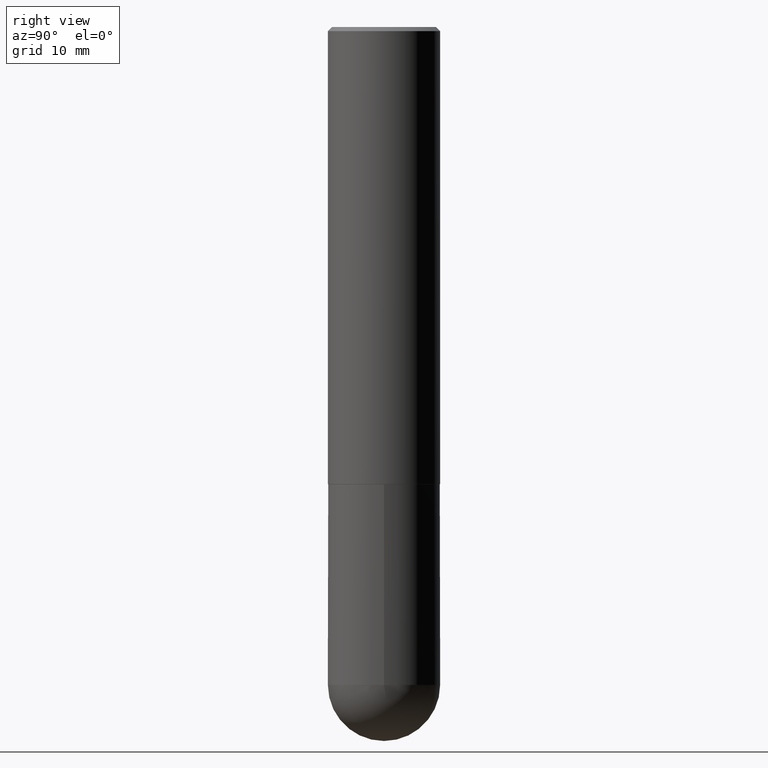
[diagram: clean part render]
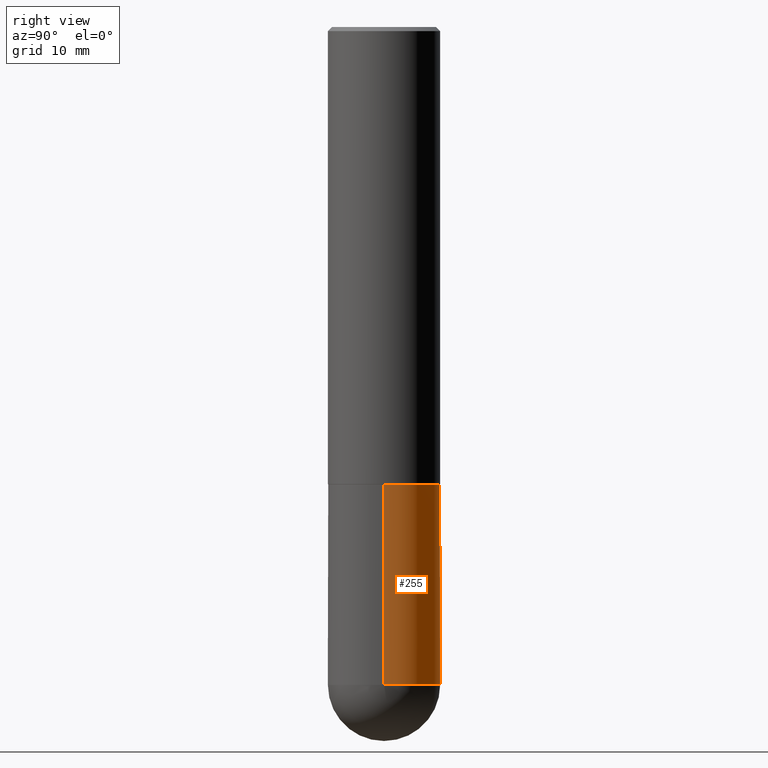
[diagram: same view with one face highlighted and labeled with its STEP entity id]
A machine part, right view. The second image highlights one B-rep face of the part: STEP entity #255.
In plain terms, the highlighted cylindrical surface (partial cylindrical patch) has radius 7.0002 mm, axis along (-0, 0, 1).
Its self-contained STEP definition (entity closure, byte-faithful):
#4 = DIRECTION ( 'NONE',  ( 1.000000000000000000, -6.982962677686264344E-15, 0.000000000000000000 ) ) ;
#8 = DIRECTION ( 'NONE',  ( -2.445468806185136597E-29, 3.491481338843145583E-15, 1.000000000000000000 ) ) ;
#16 = DIRECTION ( 'NONE',  ( -2.445468806185136877E-29, 3.491481338843145188E-15, 1.000000000000000000 ) ) ;
#19 = ORIENTED_EDGE ( 'NONE', *, *, #280, .T. ) ;
#20 = CIRCLE ( 'NONE', #304, 0.2756000000000000671 ) ;
#21 = AXIS2_PLACEMENT_3D ( 'NONE', #398, #245, #340 ) ;
#25 = DIRECTION ( 'NONE',  ( -2.445468806185136597E-29, 3.491481338843145583E-15, 1.000000000000000000 ) ) ;
#37 = CARTESIAN_POINT ( 'NONE',  ( 1.924504513970413840E-15, 0.2755999999999887429, -3.228300000000000836 ) ) ;
#51 = CARTESIAN_POINT ( 'NONE',  ( 0.2756000000000000671, -1.147789575331294974E-14, -3.228299999999999503 ) ) ;
#56 = ORIENTED_EDGE ( 'NONE', *, *, #395, .F. ) ;
#60 = FACE_OUTER_BOUND ( 'NONE', #246, .T. ) ;
#74 = CARTESIAN_POINT ( 'NONE',  ( -0.2756000000000000671, 1.958255779754836589E-15, -1.355658510874252287E-29 ) ) ;
#78 = ORIENTED_EDGE ( 'NONE', *, *, #385, .T. ) ;
#81 = CARTESIAN_POINT ( 'NONE',  ( -0.2756000000000000671, -7.595135459587778194E-15, -3.228299999999999503 ) ) ;
#83 = VERTEX_POINT ( 'NONE', #233 ) ;
#90 = VECTOR ( 'NONE', #127, 39.37007874015748143 ) ;
#101 = CIRCLE ( 'NONE', #331, 0.2756000000000000671 ) ;
#117 = EDGE_CURVE ( 'NONE', #259, #374, #20, .T. ) ;
#127 = DIRECTION ( 'NONE',  ( -2.445468806185136877E-29, 3.491481338843145188E-15, 1.000000000000000000 ) ) ;
#194 = CARTESIAN_POINT ( 'NONE',  ( 0.000000000000000000, 0.000000000000000000, 0.000000000000000000 ) ) ;
#198 = ORIENTED_EDGE ( 'NONE', *, *, #117, .T. ) ;
#207 = AXIS2_PLACEMENT_3D ( 'NONE', #194, #411, #318 ) ;
#223 = CIRCLE ( 'NONE', #21, 0.2756000000000000116 ) ;
#233 = CARTESIAN_POINT ( 'NONE',  ( 0.2756000000000000116, -9.759737786468235716E-15, -2.244099999999999540 ) ) ;
#245 = DIRECTION ( 'NONE',  ( -2.445468806185136597E-29, 3.491481338843145583E-15, 1.000000000000000000 ) ) ;
#246 = EDGE_LOOP ( 'NONE', ( #198, #78, #303, #56, #19 ) ) ;
#247 = LINE ( 'NONE', #74, #363 ) ;
#255 = ADVANCED_FACE ( 'NONE', ( #60 ), #320, .T. ) ;
#259 = VERTEX_POINT ( 'NONE', #37 ) ;
#270 = CARTESIAN_POINT ( 'NONE',  ( 7.894706947007475996E-29, -1.127154920618732565E-14, -3.228299999999999503 ) ) ;
#273 = CARTESIAN_POINT ( 'NONE',  ( -0.2756000000000000116, -7.595135459587776616E-15, -2.244099999999999540 ) ) ;
#280 = EDGE_CURVE ( 'NONE', #346, #259, #101, .T. ) ;
#303 = ORIENTED_EDGE ( 'NONE', *, *, #328, .F. ) ;
#304 = AXIS2_PLACEMENT_3D ( 'NONE', #270, #8, #4 ) ;
#315 = CARTESIAN_POINT ( 'NONE',  ( 0.2756000000000000671, -1.924504513970335743E-15, 1.343874319409360268E-29 ) ) ;
#318 = DIRECTION ( 'NONE',  ( 1.000000000000000000, -6.982962677686267499E-15, 4.876176775795935793E-29 ) ) ;
#320 = CYLINDRICAL_SURFACE ( 'NONE', #207, 0.2756000000000000671 ) ;
#328 = EDGE_CURVE ( 'NONE', #83, #384, #223, .T. ) ;
#331 = AXIS2_PLACEMENT_3D ( 'NONE', #345, #25, #389 ) ;
#340 = DIRECTION ( 'NONE',  ( 1.000000000000000000, -6.982962677686265922E-15, 0.000000000000000000 ) ) ;
#345 = CARTESIAN_POINT ( 'NONE',  ( 7.894706947007475996E-29, -1.127154920618732565E-14, -3.228299999999999503 ) ) ;
#346 = VERTEX_POINT ( 'NONE', #51 ) ;
#363 = VECTOR ( 'NONE', #16, 39.37007874015748143 ) ;
#374 = VERTEX_POINT ( 'NONE', #81 ) ;
#384 = VERTEX_POINT ( 'NONE', #273 ) ;
#385 = EDGE_CURVE ( 'NONE', #374, #384, #247, .T. ) ;
#389 = DIRECTION ( 'NONE',  ( 1.000000000000000000, -6.982962677686264344E-15, 0.000000000000000000 ) ) ;
#395 = EDGE_CURVE ( 'NONE', #346, #83, #397, .T. ) ;
#397 = LINE ( 'NONE', #315, #90 ) ;
#398 = CARTESIAN_POINT ( 'NONE',  ( 5.487876547960063631E-29, -7.835233272497900762E-15, -2.244099999999999540 ) ) ;
#411 = DIRECTION ( 'NONE',  ( -2.445468806185136597E-29, 3.491481338843145583E-15, 1.000000000000000000 ) ) ;